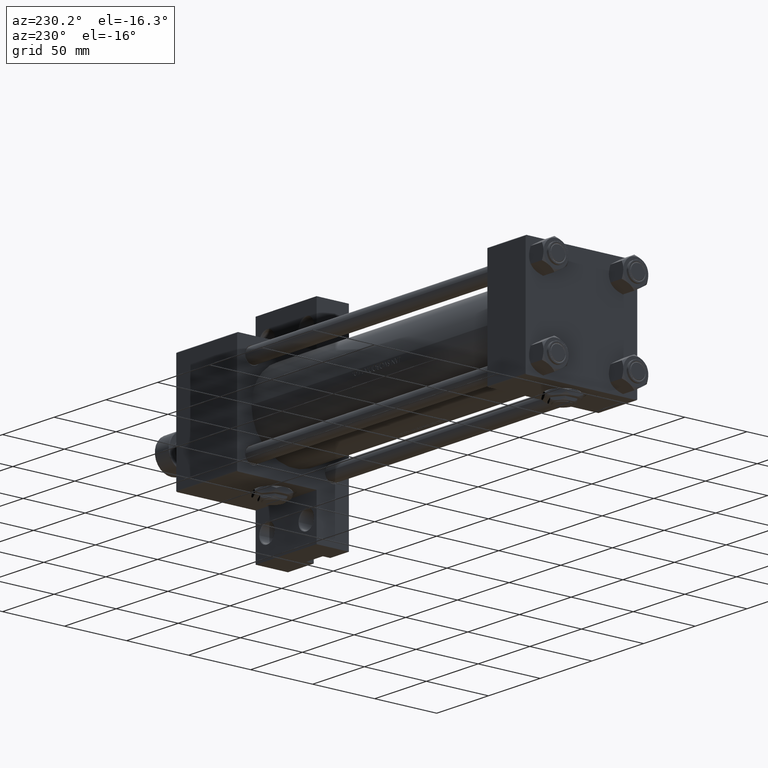
[diagram: clean part render]
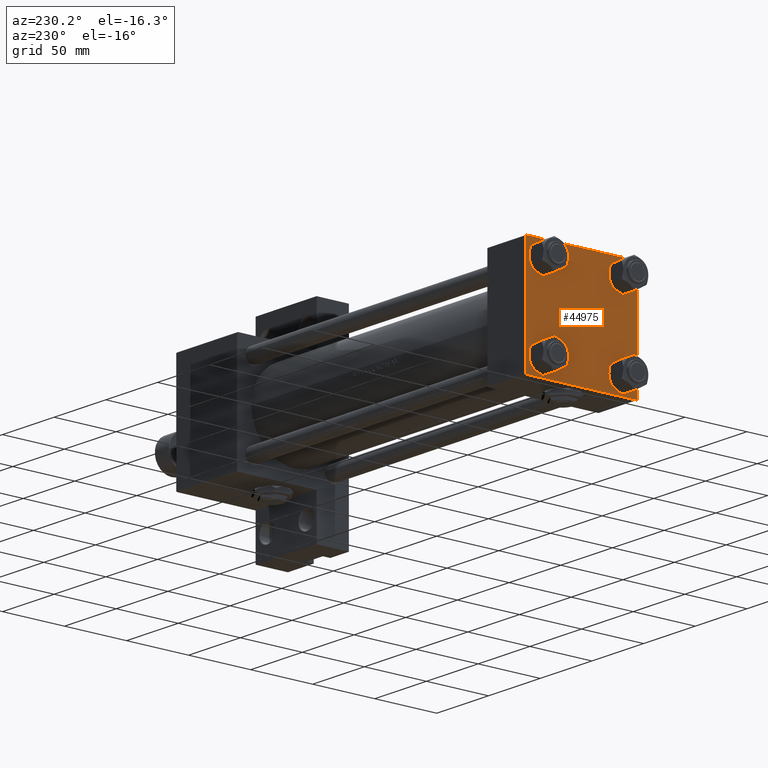
[diagram: same view with one face highlighted and labeled with its STEP entity id]
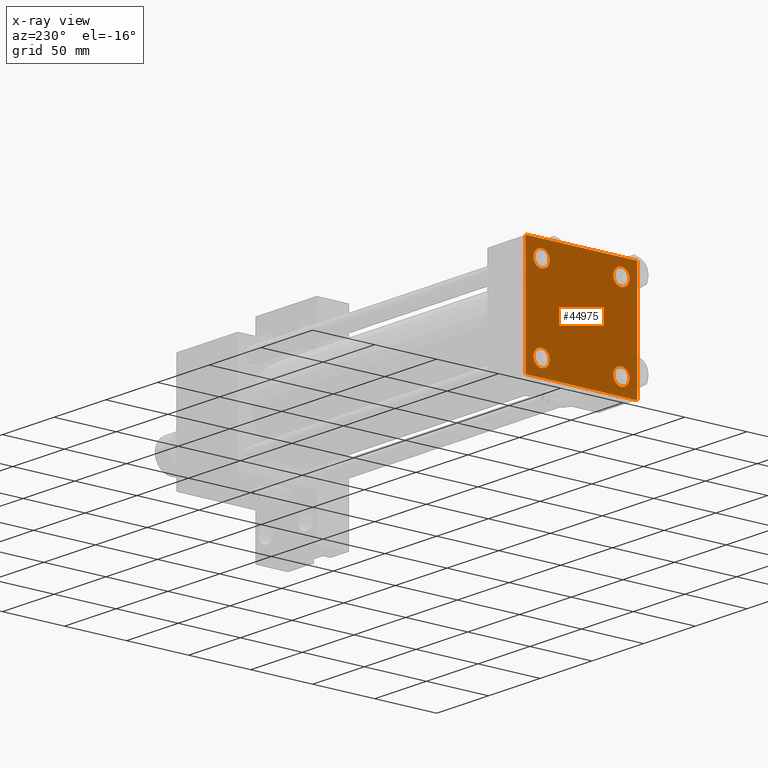
[diagram: x-ray of the same camera — body ghosted, the highlighted face saturated]
A machine part, auxiliary view. The second image highlights one B-rep face of the part: STEP entity #44975.
The next image is the same camera in x-ray: the body ghosted, the highlighted face saturated — about 0% of this face is hidden behind the body in this view.
In plain terms, the highlighted planar face has unit normal (-1, 0, -0).
Its self-contained STEP definition (entity closure, byte-faithful):
#114 = EDGE_CURVE ( 'NONE', #6629, #44229, #44752, .T. ) ;
#186 = CARTESIAN_POINT ( 'NONE',  ( 0.000000000000000000, 44.99999999999998579, -44.49999999999995737 ) ) ;
#310 = CIRCLE ( 'NONE', #31238, 6.499999999999977796 ) ;
#733 = VERTEX_POINT ( 'NONE', #7437 ) ;
#876 = CARTESIAN_POINT ( 'NONE',  ( 0.000000000000000000, -44.49999999999995737, -45.00000000000000000 ) ) ;
#1510 = ORIENTED_EDGE ( 'NONE', *, *, #15144, .T. ) ;
#1956 = CARTESIAN_POINT ( 'NONE',  ( 0.000000000000000000, -32.14999999999997726, -25.65000000000003411 ) ) ;
#2696 = VERTEX_POINT ( 'NONE', #49248 ) ;
#2750 = VERTEX_POINT ( 'NONE', #3545 ) ;
#3545 = CARTESIAN_POINT ( 'NONE',  ( 0.000000000000000000, 32.14999999999999147, 25.65000000000002700 ) ) ;
#4241 = DIRECTION ( 'NONE',  ( 0.000000000000000000, 0.000000000000000000, 1.000000000000000000 ) ) ;
#4396 = CARTESIAN_POINT ( 'NONE',  ( 0.000000000000000000, 44.49999999999998579, 45.00000000000001421 ) ) ;
#4425 = EDGE_LOOP ( 'NONE', ( #9545, #29371 ) ) ;
#4612 = CARTESIAN_POINT ( 'NONE',  ( 0.000000000000000000, 44.74999999999999289, 44.74999999999999289 ) ) ;
#5306 = CARTESIAN_POINT ( 'NONE',  ( 0.000000000000000000, 44.99999999999998579, -44.99999999999998579 ) ) ;
#5311 = AXIS2_PLACEMENT_3D ( 'NONE', #21722, #26276, #33656 ) ;
#5859 = ORIENTED_EDGE ( 'NONE', *, *, #31367, .F. ) ;
#6290 = VECTOR ( 'NONE', #21011, 1000.000000000000114 ) ;
#6629 = VERTEX_POINT ( 'NONE', #15081 ) ;
#7140 = CARTESIAN_POINT ( 'NONE',  ( 0.000000000000000000, 32.14999999999999147, -32.15000000000000568 ) ) ;
#7178 = DIRECTION ( 'NONE',  ( 1.000000000000000000, -0.000000000000000000, 0.000000000000000000 ) ) ;
#7437 = CARTESIAN_POINT ( 'NONE',  ( 0.000000000000000000, 44.99999999999998579, 44.50000000000001421 ) ) ;
#7445 = EDGE_CURVE ( 'NONE', #8422, #22425, #29086, .T. ) ;
#7472 = EDGE_CURVE ( 'NONE', #14562, #35807, #30324, .T. ) ;
#7797 = CARTESIAN_POINT ( 'NONE',  ( 0.000000000000000000, 32.14999999999999147, 32.15000000000000568 ) ) ;
#8042 = DIRECTION ( 'NONE',  ( 1.000000000000000000, -0.000000000000000000, 0.000000000000000000 ) ) ;
#8151 = ORIENTED_EDGE ( 'NONE', *, *, #40750, .T. ) ;
#8292 = CARTESIAN_POINT ( 'NONE',  ( 0.000000000000000000, -32.14999999999997726, -32.15000000000001279 ) ) ;
#8422 = VERTEX_POINT ( 'NONE', #876 ) ;
#9067 = LINE ( 'NONE', #20770, #6290 ) ;
#9545 = ORIENTED_EDGE ( 'NONE', *, *, #41472, .T. ) ;
#10150 = DIRECTION ( 'NONE',  ( 1.000000000000000000, -0.000000000000000000, 0.000000000000000000 ) ) ;
#10784 = DIRECTION ( 'NONE',  ( 1.000000000000000000, -0.000000000000000000, 0.000000000000000000 ) ) ;
#12015 = ORIENTED_EDGE ( 'NONE', *, *, #49198, .F. ) ;
#12218 = LINE ( 'NONE', #4612, #32766 ) ;
#12428 = VERTEX_POINT ( 'NONE', #33995 ) ;
#12728 = CARTESIAN_POINT ( 'NONE',  ( 0.000000000000000000, -32.14999999999997726, 38.65000000000003411 ) ) ;
#13073 = EDGE_LOOP ( 'NONE', ( #26996, #1510 ) ) ;
#13076 = VECTOR ( 'NONE', #19645, 1000.000000000000000 ) ;
#13217 = ORIENTED_EDGE ( 'NONE', *, *, #36663, .T. ) ;
#14100 = DIRECTION ( 'NONE',  ( 0.000000000000000000, -0.7071067811865474617, 0.7071067811865474617 ) ) ;
#14562 = VERTEX_POINT ( 'NONE', #1956 ) ;
#14573 = EDGE_CURVE ( 'NONE', #37252, #33475, #32219, .T. ) ;
#14681 = DIRECTION ( 'NONE',  ( 0.000000000000000000, 0.000000000000000000, 1.000000000000000000 ) ) ;
#14793 = VECTOR ( 'NONE', #14957, 1000.000000000000000 ) ;
#14957 = DIRECTION ( 'NONE',  ( 0.000000000000000000, 7.709882115452476934E-17, -1.000000000000000000 ) ) ;
#15081 = CARTESIAN_POINT ( 'NONE',  ( 0.000000000000000000, -32.14999999999997726, 25.64999999999999147 ) ) ;
#15144 = EDGE_CURVE ( 'NONE', #2750, #2696, #33831, .T. ) ;
#15153 = AXIS2_PLACEMENT_3D ( 'NONE', #26544, #10784, #21743 ) ;
#15165 = CARTESIAN_POINT ( 'NONE',  ( 0.000000000000000000, -45.00000000000000000, -44.49999999999995737 ) ) ;
#15286 = DIRECTION ( 'NONE',  ( -0.000000000000000000, 0.7071067811865425767, 0.7071067811865524577 ) ) ;
#15329 = DIRECTION ( 'NONE',  ( 1.000000000000000000, -0.000000000000000000, 0.000000000000000000 ) ) ;
#15821 = CARTESIAN_POINT ( 'NONE',  ( 0.000000000000000000, 32.14999999999999147, 32.15000000000000568 ) ) ;
#16341 = VECTOR ( 'NONE', #15286, 1000.000000000000114 ) ;
#16403 = VERTEX_POINT ( 'NONE', #186 ) ;
#16482 = CIRCLE ( 'NONE', #40814, 6.499999999999977796 ) ;
#16494 = ORIENTED_EDGE ( 'NONE', *, *, #18968, .T. ) ;
#16764 = ORIENTED_EDGE ( 'NONE', *, *, #32468, .T. ) ;
#16954 = DIRECTION ( 'NONE',  ( 0.000000000000000000, 0.000000000000000000, -1.000000000000000000 ) ) ;
#16999 = ORIENTED_EDGE ( 'NONE', *, *, #41319, .T. ) ;
#18929 = EDGE_CURVE ( 'NONE', #16403, #12428, #9067, .T. ) ;
#18968 = EDGE_CURVE ( 'NONE', #733, #16403, #47659, .T. ) ;
#19645 = DIRECTION ( 'NONE',  ( 0.000000000000000000, -1.000000000000000000, -1.541976423090495387E-16 ) ) ;
#20770 = CARTESIAN_POINT ( 'NONE',  ( 0.000000000000000000, 44.74999999999998579, -44.74999999999998579 ) ) ;
#20796 = DIRECTION ( 'NONE',  ( 0.000000000000000000, -1.000000000000000000, -1.541976423090495633E-16 ) ) ;
#21011 = DIRECTION ( 'NONE',  ( -0.000000000000000000, -0.7071067811865474617, -0.7071067811865474617 ) ) ;
#21482 = FACE_BOUND ( 'NONE', #45207, .T. ) ;
#21709 = VECTOR ( 'NONE', #16954, 1000.000000000000000 ) ;
#21722 = CARTESIAN_POINT ( 'NONE',  ( 0.000000000000000000, 0.000000000000000000, 0.000000000000000000 ) ) ;
#21743 = DIRECTION ( 'NONE',  ( 0.000000000000000000, 0.000000000000000000, 1.000000000000000000 ) ) ;
#22425 = VERTEX_POINT ( 'NONE', #15165 ) ;
#22641 = DIRECTION ( 'NONE',  ( 1.000000000000000000, -0.000000000000000000, 0.000000000000000000 ) ) ;
#23415 = CARTESIAN_POINT ( 'NONE',  ( -0.000000000000000000, -44.75000000000029843, 44.74999999999967315 ) ) ;
#23809 = DIRECTION ( 'NONE',  ( 1.000000000000000000, -0.000000000000000000, 0.000000000000000000 ) ) ;
#24082 = VERTEX_POINT ( 'NONE', #4396 ) ;
#24193 = CARTESIAN_POINT ( 'NONE',  ( 0.000000000000000000, 32.14999999999999147, -25.65000000000002700 ) ) ;
#26276 = DIRECTION ( 'NONE',  ( -1.000000000000000000, 0.000000000000000000, -0.000000000000000000 ) ) ;
#26515 = CARTESIAN_POINT ( 'NONE',  ( 0.000000000000000000, 44.99999999999998579, 45.00000000000001421 ) ) ;
#26544 = CARTESIAN_POINT ( 'NONE',  ( 0.000000000000000000, 32.14999999999999147, -32.15000000000000568 ) ) ;
#26620 = VERTEX_POINT ( 'NONE', #40111 ) ;
#26898 = AXIS2_PLACEMENT_3D ( 'NONE', #27383, #42094, #14681 ) ;
#26996 = ORIENTED_EDGE ( 'NONE', *, *, #36629, .T. ) ;
#27168 = CIRCLE ( 'NONE', #39350, 6.500000000000019540 ) ;
#27383 = CARTESIAN_POINT ( 'NONE',  ( 0.000000000000000000, -32.14999999999997726, 32.15000000000001279 ) ) ;
#28644 = CARTESIAN_POINT ( 'NONE',  ( 0.000000000000000000, 44.99999999999998579, 45.00000000000001421 ) ) ;
#28999 = EDGE_LOOP ( 'NONE', ( #16494, #47214, #47676, #47848, #12015, #16764, #5859, #16999 ) ) ;
#29086 = LINE ( 'NONE', #44815, #49719 ) ;
#29371 = ORIENTED_EDGE ( 'NONE', *, *, #114, .T. ) ;
#29602 = FACE_BOUND ( 'NONE', #4425, .T. ) ;
#29721 = CARTESIAN_POINT ( 'NONE',  ( 0.000000000000000000, -32.14999999999997726, 32.15000000000001279 ) ) ;
#29849 = FACE_BOUND ( 'NONE', #32890, .T. ) ;
#30288 = AXIS2_PLACEMENT_3D ( 'NONE', #7797, #8042, #4241 ) ;
#30324 = CIRCLE ( 'NONE', #46501, 6.499999999999977796 ) ;
#30455 = LINE ( 'NONE', #46159, #14793 ) ;
#31238 = AXIS2_PLACEMENT_3D ( 'NONE', #7140, #22641, #34323 ) ;
#31367 = EDGE_CURVE ( 'NONE', #24082, #46807, #33146, .T. ) ;
#32178 = CARTESIAN_POINT ( 'NONE',  ( 0.000000000000000000, -32.14999999999997726, -38.64999999999999147 ) ) ;
#32219 = CIRCLE ( 'NONE', #15153, 6.499999999999977796 ) ;
#32247 = AXIS2_PLACEMENT_3D ( 'NONE', #15821, #7178, #46023 ) ;
#32468 = EDGE_CURVE ( 'NONE', #26620, #46807, #42455, .T. ) ;
#32766 = VECTOR ( 'NONE', #35592, 1000.000000000000114 ) ;
#32890 = EDGE_LOOP ( 'NONE', ( #49443, #8151 ) ) ;
#32905 = CARTESIAN_POINT ( 'NONE',  ( 0.000000000000000000, 32.14999999999999147, -38.64999999999998437 ) ) ;
#33146 = LINE ( 'NONE', #26515, #13076 ) ;
#33475 = VERTEX_POINT ( 'NONE', #32905 ) ;
#33656 = DIRECTION ( 'NONE',  ( -0.000000000000000000, 0.000000000000000000, 1.000000000000000000 ) ) ;
#33831 = CIRCLE ( 'NONE', #32247, 6.499999999999977796 ) ;
#33995 = CARTESIAN_POINT ( 'NONE',  ( 0.000000000000000000, 44.49999999999998579, -44.99999999999998579 ) ) ;
#34323 = DIRECTION ( 'NONE',  ( 0.000000000000000000, 0.000000000000000000, 1.000000000000000000 ) ) ;
#35484 = EDGE_CURVE ( 'NONE', #12428, #8422, #43897, .T. ) ;
#35592 = DIRECTION ( 'NONE',  ( 0.000000000000000000, 0.7071067811865474617, -0.7071067811865474617 ) ) ;
#35807 = VERTEX_POINT ( 'NONE', #32178 ) ;
#36629 = EDGE_CURVE ( 'NONE', #2696, #2750, #45679, .T. ) ;
#36663 = EDGE_CURVE ( 'NONE', #35807, #14562, #16482, .T. ) ;
#36969 = FACE_OUTER_BOUND ( 'NONE', #28999, .T. ) ;
#37252 = VERTEX_POINT ( 'NONE', #24193 ) ;
#37941 = CARTESIAN_POINT ( 'NONE',  ( 0.000000000000000000, -32.14999999999997726, -32.15000000000001279 ) ) ;
#38185 = DIRECTION ( 'NONE',  ( 0.000000000000000000, 0.000000000000000000, 1.000000000000000000 ) ) ;
#38858 = ORIENTED_EDGE ( 'NONE', *, *, #7472, .T. ) ;
#39289 = DIRECTION ( 'NONE',  ( 0.000000000000000000, 0.000000000000000000, 1.000000000000000000 ) ) ;
#39350 = AXIS2_PLACEMENT_3D ( 'NONE', #29721, #10150, #45929 ) ;
#40111 = CARTESIAN_POINT ( 'NONE',  ( 0.000000000000000000, -45.00000000000000711, 44.49999999999997158 ) ) ;
#40750 = EDGE_CURVE ( 'NONE', #33475, #37252, #310, .T. ) ;
#40814 = AXIS2_PLACEMENT_3D ( 'NONE', #8292, #23809, #39289 ) ;
#41319 = EDGE_CURVE ( 'NONE', #24082, #733, #12218, .T. ) ;
#41472 = EDGE_CURVE ( 'NONE', #44229, #6629, #27168, .T. ) ;
#42094 = DIRECTION ( 'NONE',  ( 1.000000000000000000, -0.000000000000000000, 0.000000000000000000 ) ) ;
#42455 = LINE ( 'NONE', #23415, #16341 ) ;
#43799 = CARTESIAN_POINT ( 'NONE',  ( 0.000000000000000000, -44.49999999999995737, 45.00000000000000000 ) ) ;
#43897 = LINE ( 'NONE', #5306, #45637 ) ;
#44229 = VERTEX_POINT ( 'NONE', #12728 ) ;
#44752 = CIRCLE ( 'NONE', #26898, 6.500000000000019540 ) ;
#44815 = CARTESIAN_POINT ( 'NONE',  ( 0.000000000000000000, -44.74999999999998579, -44.74999999999998579 ) ) ;
#44975 = ADVANCED_FACE ( 'NONE', ( #29602, #21482, #29849, #48617, #36969 ), #48373, .T. ) ;
#45207 = EDGE_LOOP ( 'NONE', ( #38858, #13217 ) ) ;
#45637 = VECTOR ( 'NONE', #20796, 1000.000000000000000 ) ;
#45679 = CIRCLE ( 'NONE', #30288, 6.499999999999977796 ) ;
#45929 = DIRECTION ( 'NONE',  ( 0.000000000000000000, 0.000000000000000000, 1.000000000000000000 ) ) ;
#46023 = DIRECTION ( 'NONE',  ( 0.000000000000000000, 0.000000000000000000, 1.000000000000000000 ) ) ;
#46159 = CARTESIAN_POINT ( 'NONE',  ( 0.000000000000000000, -45.00000000000000711, 45.00000000000000000 ) ) ;
#46501 = AXIS2_PLACEMENT_3D ( 'NONE', #37941, #15329, #38185 ) ;
#46807 = VERTEX_POINT ( 'NONE', #43799 ) ;
#47214 = ORIENTED_EDGE ( 'NONE', *, *, #18929, .T. ) ;
#47659 = LINE ( 'NONE', #28644, #21709 ) ;
#47676 = ORIENTED_EDGE ( 'NONE', *, *, #35484, .T. ) ;
#47848 = ORIENTED_EDGE ( 'NONE', *, *, #7445, .T. ) ;
#48373 = PLANE ( 'NONE',  #5311 ) ;
#48617 = FACE_BOUND ( 'NONE', #13073, .T. ) ;
#49198 = EDGE_CURVE ( 'NONE', #26620, #22425, #30455, .T. ) ;
#49248 = CARTESIAN_POINT ( 'NONE',  ( 0.000000000000000000, 32.14999999999999147, 38.64999999999999147 ) ) ;
#49443 = ORIENTED_EDGE ( 'NONE', *, *, #14573, .T. ) ;
#49719 = VECTOR ( 'NONE', #14100, 1000.000000000000114 ) ;